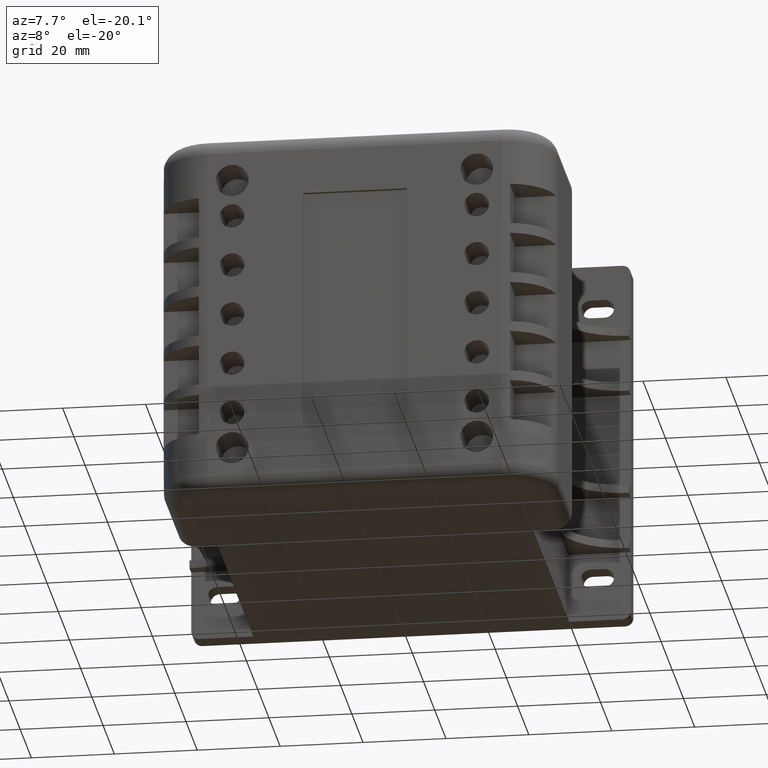
[diagram: clean part render]
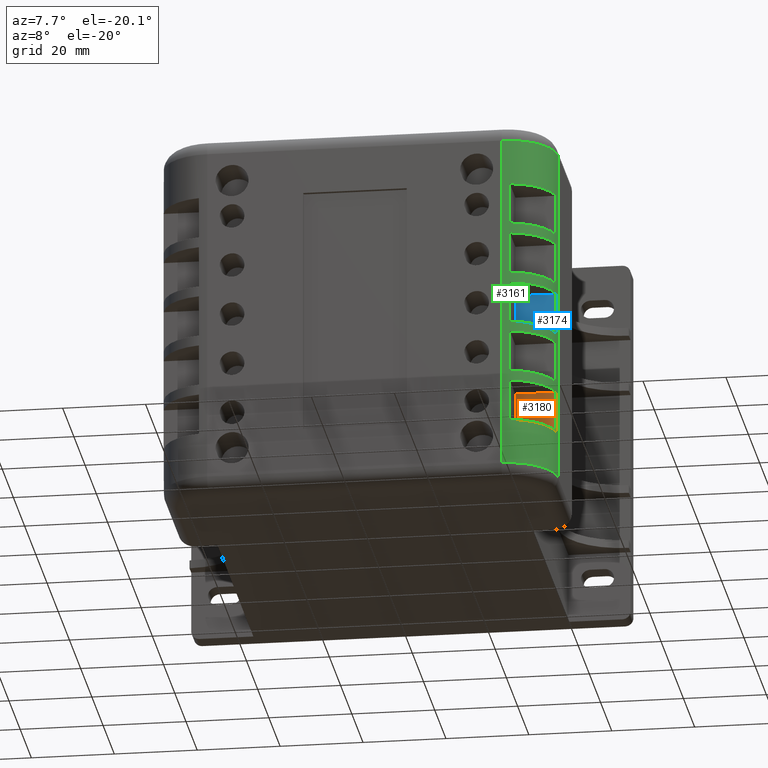
[diagram: same view with three faces highlighted in distinct colors, each labeled with its STEP entity id]
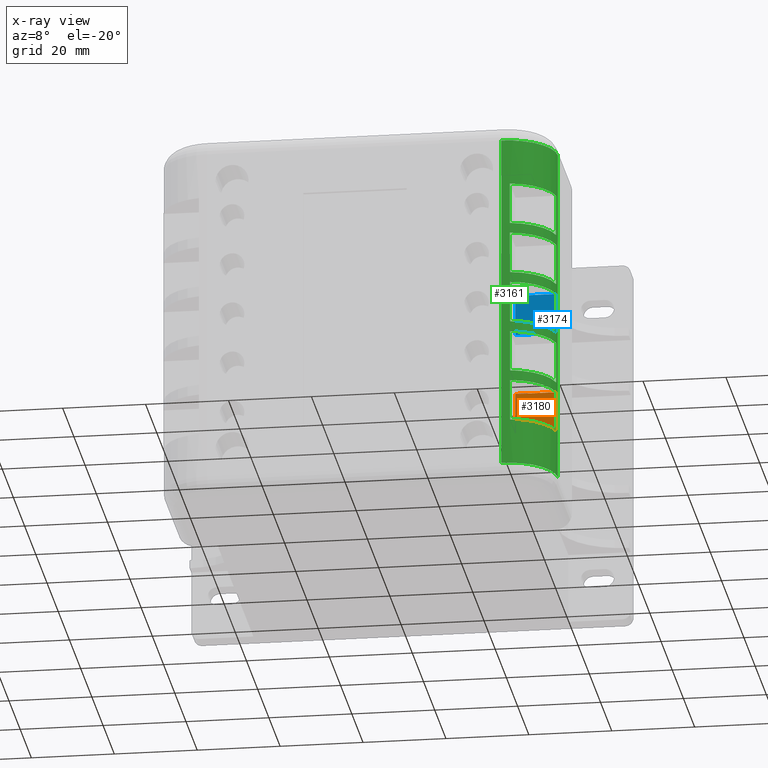
[diagram: x-ray of the same camera — body ghosted, the three highlighted faces saturated]
A machine part, auxiliary view with three faces highlighted in distinct colors.
The next image is the same camera in x-ray (body ghosted, the three faces saturated) — at least one of them is partly hidden behind the body in this view.
Their STEP definitions:

[orange] entity #3180 — the highlighted planar face has unit normal (-0, -1, -0).
#311=FACE_OUTER_BOUND('',#521,.T.);
#521=EDGE_LOOP('',(#2269,#2270,#2271,#2272));
#730=LINE('',#4918,#1034);
#746=LINE('',#4955,#1050);
#748=LINE('',#4958,#1052);
#757=LINE('',#4979,#1061);
#1034=VECTOR('',#4030,10.);
#1050=VECTOR('',#4064,10.);
#1052=VECTOR('',#4068,10.);
#1061=VECTOR('',#4097,10.);
#1346=VERTEX_POINT('',#4911);
#1349=VERTEX_POINT('',#4916);
#1360=VERTEX_POINT('',#4952);
#1361=VERTEX_POINT('',#4954);
#1666=EDGE_CURVE('',#1349,#1346,#730,.T.);
#1684=EDGE_CURVE('',#1361,#1360,#746,.T.);
#1686=EDGE_CURVE('',#1360,#1346,#748,.T.);
#1695=EDGE_CURVE('',#1349,#1361,#757,.T.);
#2269=ORIENTED_EDGE('',*,*,#1666,.F.);
#2270=ORIENTED_EDGE('',*,*,#1695,.T.);
#2271=ORIENTED_EDGE('',*,*,#1684,.T.);
#2272=ORIENTED_EDGE('',*,*,#1686,.T.);
#2814=PLANE('',#3537);
#3180=ADVANCED_FACE('',(#311),#2814,.T.);
#3537=AXIS2_PLACEMENT_3D('',#4980,#4098,#4099);
#4030=DIRECTION('',(-3.94745964311167E-16,0.,-1.));
#4064=DIRECTION('',(-7.89491928622334E-16,0.,-1.));
#4068=DIRECTION('',(-1.,0.,7.89491928622334E-16));
#4097=DIRECTION('',(1.,0.,-7.89491928622334E-16));
#4098=DIRECTION('center_axis',(0.,1.,0.));
#4099=DIRECTION('ref_axis',(-7.89491928622334E-16,0.,-1.));
#4911=CARTESIAN_POINT('',(-94.8321595661992,27.,15.));
#4916=CARTESIAN_POINT('',(-94.8321595661992,27.,25.));
#4918=CARTESIAN_POINT('',(-94.8321595661992,27.,22.5));
#4952=CARTESIAN_POINT('',(-85.,27.,15.));
#4954=CARTESIAN_POINT('',(-85.,27.,25.));
#4955=CARTESIAN_POINT('',(-85.,27.,15.));
#4958=CARTESIAN_POINT('',(-95.,27.,15.));
#4979=CARTESIAN_POINT('',(-85.,27.,25.));
#4980=CARTESIAN_POINT('Origin',(-90.,27.,20.));

[blue] entity #3174 — the highlighted planar face has unit normal (-0, -1, -0).
#305=FACE_OUTER_BOUND('',#515,.T.);
#515=EDGE_LOOP('',(#2248,#2249,#2250,#2251));
#724=LINE('',#4894,#1028);
#734=LINE('',#4931,#1038);
#736=LINE('',#4934,#1040);
#754=LINE('',#4970,#1058);
#1028=VECTOR('',#4012,10.);
#1038=VECTOR('',#4040,10.);
#1040=VECTOR('',#4044,10.);
#1058=VECTOR('',#4082,10.);
#1334=VERTEX_POINT('',#4887);
#1337=VERTEX_POINT('',#4892);
#1354=VERTEX_POINT('',#4928);
#1355=VERTEX_POINT('',#4930);
#1654=EDGE_CURVE('',#1337,#1334,#724,.T.);
#1672=EDGE_CURVE('',#1355,#1354,#734,.T.);
#1674=EDGE_CURVE('',#1354,#1334,#736,.T.);
#1692=EDGE_CURVE('',#1337,#1355,#754,.T.);
#2248=ORIENTED_EDGE('',*,*,#1654,.F.);
#2249=ORIENTED_EDGE('',*,*,#1692,.T.);
#2250=ORIENTED_EDGE('',*,*,#1672,.T.);
#2251=ORIENTED_EDGE('',*,*,#1674,.T.);
#2808=PLANE('',#3531);
#3174=ADVANCED_FACE('',(#305),#2808,.T.);
#3531=AXIS2_PLACEMENT_3D('',#4971,#4083,#4084);
#4012=DIRECTION('',(-3.94745964311167E-16,0.,-1.));
#4040=DIRECTION('',(-7.89491928622334E-16,0.,-1.));
#4044=DIRECTION('',(-1.,0.,7.89491928622334E-16));
#4082=DIRECTION('',(1.,0.,-7.89491928622334E-16));
#4083=DIRECTION('center_axis',(0.,1.,0.));
#4084=DIRECTION('ref_axis',(-7.89491928622334E-16,0.,-1.));
#4887=CARTESIAN_POINT('',(-94.8321595661992,27.,40.));
#4892=CARTESIAN_POINT('',(-94.8321595661992,27.,50.));
#4894=CARTESIAN_POINT('',(-94.8321595661992,27.,22.5));
#4928=CARTESIAN_POINT('',(-85.,27.,40.));
#4930=CARTESIAN_POINT('',(-85.,27.,50.));
#4931=CARTESIAN_POINT('',(-85.,27.,40.));
#4934=CARTESIAN_POINT('',(-95.,27.,40.));
#4970=CARTESIAN_POINT('',(-85.,27.,50.));
#4971=CARTESIAN_POINT('Origin',(-90.,27.,45.));

[green] entity #3161 — the highlighted cylindrical surface (partial cylindrical patch) has radius 12 mm, axis along (-0, -0, 1).
#47=CYLINDRICAL_SURFACE('',#3508,12.);
#108=CIRCLE('',#3490,12.);
#111=CIRCLE('',#3497,12.);
#117=CIRCLE('',#3509,12.);
#118=CIRCLE('',#3510,12.);
#119=CIRCLE('',#3511,12.);
#120=CIRCLE('',#3512,12.);
#121=CIRCLE('',#3513,12.);
#122=CIRCLE('',#3514,12.);
#123=CIRCLE('',#3515,12.);
#124=CIRCLE('',#3516,12.);
#125=CIRCLE('',#3517,12.);
#126=CIRCLE('',#3518,12.);
#196=FACE_BOUND('',#483,.T.);
#197=FACE_BOUND('',#484,.T.);
#198=FACE_BOUND('',#485,.T.);
#199=FACE_BOUND('',#486,.T.);
#200=FACE_BOUND('',#487,.T.);
#292=FACE_OUTER_BOUND('',#482,.T.);
#482=EDGE_LOOP('',(#2164,#2165,#2166,#2167));
#483=EDGE_LOOP('',(#2168,#2169,#2170,#2171));
#484=EDGE_LOOP('',(#2172,#2173,#2174,#2175));
#485=EDGE_LOOP('',(#2176,#2177,#2178,#2179));
#486=EDGE_LOOP('',(#2180,#2181,#2182,#2183));
#487=EDGE_LOOP('',(#2184,#2185,#2186,#2187));
#721=LINE('',#4884,#1025);
#722=LINE('',#4886,#1026);
#723=LINE('',#4891,#1027);
#724=LINE('',#4894,#1028);
#725=LINE('',#4899,#1029);
#726=LINE('',#4902,#1030);
#727=LINE('',#4907,#1031);
#728=LINE('',#4910,#1032);
#729=LINE('',#4915,#1033);
#730=LINE('',#4918,#1034);
#731=LINE('',#4923,#1035);
#732=LINE('',#4926,#1036);
#1025=VECTOR('',#4003,10.);
#1026=VECTOR('',#4006,10.);
#1027=VECTOR('',#4009,10.);
#1028=VECTOR('',#4012,10.);
#1029=VECTOR('',#4015,10.);
#1030=VECTOR('',#4018,10.);
#1031=VECTOR('',#4021,10.);
#1032=VECTOR('',#4024,10.);
#1033=VECTOR('',#4027,10.);
#1034=VECTOR('',#4030,10.);
#1035=VECTOR('',#4033,10.);
#1036=VECTOR('',#4036,10.);
#1324=VERTEX_POINT('',#4844);
#1325=VERTEX_POINT('',#4848);
#1328=VERTEX_POINT('',#4860);
#1330=VERTEX_POINT('',#4865);
#1334=VERTEX_POINT('',#4887);
#1335=VERTEX_POINT('',#4888);
#1336=VERTEX_POINT('',#4890);
#1337=VERTEX_POINT('',#4892);
#1338=VERTEX_POINT('',#4895);
#1339=VERTEX_POINT('',#4896);
#1340=VERTEX_POINT('',#4898);
#1341=VERTEX_POINT('',#4900);
#1342=VERTEX_POINT('',#4903);
#1343=VERTEX_POINT('',#4904);
#1344=VERTEX_POINT('',#4906);
#1345=VERTEX_POINT('',#4908);
#1346=VERTEX_POINT('',#4911);
#1347=VERTEX_POINT('',#4912);
#1348=VERTEX_POINT('',#4914);
#1349=VERTEX_POINT('',#4916);
#1350=VERTEX_POINT('',#4919);
#1351=VERTEX_POINT('',#4920);
#1352=VERTEX_POINT('',#4922);
#1353=VERTEX_POINT('',#4924);
#1632=EDGE_CURVE('',#1325,#1324,#108,.T.);
#1640=EDGE_CURVE('',#1330,#1328,#111,.T.);
#1649=EDGE_CURVE('',#1325,#1328,#721,.T.);
#1650=EDGE_CURVE('',#1330,#1324,#722,.T.);
#1651=EDGE_CURVE('',#1334,#1335,#117,.T.);
#1652=EDGE_CURVE('',#1335,#1336,#723,.T.);
#1653=EDGE_CURVE('',#1336,#1337,#118,.T.);
#1654=EDGE_CURVE('',#1337,#1334,#724,.T.);
#1655=EDGE_CURVE('',#1338,#1339,#119,.T.);
#1656=EDGE_CURVE('',#1339,#1340,#725,.T.);
#1657=EDGE_CURVE('',#1340,#1341,#120,.T.);
#1658=EDGE_CURVE('',#1341,#1338,#726,.T.);
#1659=EDGE_CURVE('',#1342,#1343,#121,.T.);
#1660=EDGE_CURVE('',#1343,#1344,#727,.T.);
#1661=EDGE_CURVE('',#1344,#1345,#122,.T.);
#1662=EDGE_CURVE('',#1345,#1342,#728,.T.);
#1663=EDGE_CURVE('',#1346,#1347,#123,.T.);
#1664=EDGE_CURVE('',#1347,#1348,#729,.T.);
#1665=EDGE_CURVE('',#1348,#1349,#124,.T.);
#1666=EDGE_CURVE('',#1349,#1346,#730,.T.);
#1667=EDGE_CURVE('',#1350,#1351,#125,.T.);
#1668=EDGE_CURVE('',#1351,#1352,#731,.T.);
#1669=EDGE_CURVE('',#1352,#1353,#126,.T.);
#1670=EDGE_CURVE('',#1353,#1350,#732,.T.);
#2164=ORIENTED_EDGE('',*,*,#1632,.F.);
#2165=ORIENTED_EDGE('',*,*,#1649,.T.);
#2166=ORIENTED_EDGE('',*,*,#1640,.F.);
#2167=ORIENTED_EDGE('',*,*,#1650,.T.);
#2168=ORIENTED_EDGE('',*,*,#1651,.T.);
#2169=ORIENTED_EDGE('',*,*,#1652,.T.);
#2170=ORIENTED_EDGE('',*,*,#1653,.T.);
#2171=ORIENTED_EDGE('',*,*,#1654,.T.);
#2172=ORIENTED_EDGE('',*,*,#1655,.T.);
#2173=ORIENTED_EDGE('',*,*,#1656,.T.);
#2174=ORIENTED_EDGE('',*,*,#1657,.T.);
#2175=ORIENTED_EDGE('',*,*,#1658,.T.);
#2176=ORIENTED_EDGE('',*,*,#1659,.T.);
#2177=ORIENTED_EDGE('',*,*,#1660,.T.);
#2178=ORIENTED_EDGE('',*,*,#1661,.T.);
#2179=ORIENTED_EDGE('',*,*,#1662,.T.);
#2180=ORIENTED_EDGE('',*,*,#1663,.T.);
#2181=ORIENTED_EDGE('',*,*,#1664,.T.);
#2182=ORIENTED_EDGE('',*,*,#1665,.T.);
#2183=ORIENTED_EDGE('',*,*,#1666,.T.);
#2184=ORIENTED_EDGE('',*,*,#1667,.T.);
#2185=ORIENTED_EDGE('',*,*,#1668,.T.);
#2186=ORIENTED_EDGE('',*,*,#1669,.T.);
#2187=ORIENTED_EDGE('',*,*,#1670,.T.);
#3161=ADVANCED_FACE('',(#292,#196,#197,#198,#199,#200),#47,.T.);
#3490=AXIS2_PLACEMENT_3D('',#4850,#3959,#3960);
#3497=AXIS2_PLACEMENT_3D('',#4867,#3978,#3979);
#3508=AXIS2_PLACEMENT_3D('',#4885,#4004,#4005);
#3509=AXIS2_PLACEMENT_3D('',#4889,#4007,#4008);
#3510=AXIS2_PLACEMENT_3D('',#4893,#4010,#4011);
#3511=AXIS2_PLACEMENT_3D('',#4897,#4013,#4014);
#3512=AXIS2_PLACEMENT_3D('',#4901,#4016,#4017);
#3513=AXIS2_PLACEMENT_3D('',#4905,#4019,#4020);
#3514=AXIS2_PLACEMENT_3D('',#4909,#4022,#4023);
#3515=AXIS2_PLACEMENT_3D('',#4913,#4025,#4026);
#3516=AXIS2_PLACEMENT_3D('',#4917,#4028,#4029);
#3517=AXIS2_PLACEMENT_3D('',#4921,#4031,#4032);
#3518=AXIS2_PLACEMENT_3D('',#4925,#4034,#4035);
#3959=DIRECTION('center_axis',(0.,0.,-1.));
#3960=DIRECTION('ref_axis',(-0.707106781186549,0.707106781186546,0.));
#3978=DIRECTION('center_axis',(0.,0.,1.));
#3979=DIRECTION('ref_axis',(-0.707106781186547,0.707106781186548,0.));
#4003=DIRECTION('',(3.94745964311167E-16,0.,1.));
#4004=DIRECTION('center_axis',(3.94745964311167E-16,0.,1.));
#4005=DIRECTION('ref_axis',(-0.707106781186547,0.707106781186548,5.23364152894592E-16));
#4006=DIRECTION('',(-3.94745964311167E-16,0.,-1.));
#4007=DIRECTION('center_axis',(-7.89491928622333E-16,0.,-1.));
#4008=DIRECTION('ref_axis',(-0.707106781186547,0.707106781186548,5.23364152894592E-16));
#4009=DIRECTION('',(3.94745964311167E-16,0.,1.));
#4010=DIRECTION('center_axis',(7.89491928622333E-16,0.,1.));
#4011=DIRECTION('ref_axis',(-0.707106781186547,0.707106781186548,5.23364152894592E-16));
#4012=DIRECTION('',(-3.94745964311167E-16,0.,-1.));
#4013=DIRECTION('center_axis',(-7.89491928622333E-16,0.,-1.));
#4014=DIRECTION('ref_axis',(-0.707106781186547,0.707106781186548,5.23364152894592E-16));
#4015=DIRECTION('',(3.94745964311167E-16,0.,1.));
#4016=DIRECTION('center_axis',(7.89491928622333E-16,0.,1.));
#4017=DIRECTION('ref_axis',(-0.707106781186547,0.707106781186548,5.23364152894592E-16));
#4018=DIRECTION('',(-3.94745964311167E-16,0.,-1.));
#4019=DIRECTION('center_axis',(-7.89491928622333E-16,0.,-1.));
#4020=DIRECTION('ref_axis',(-0.707106781186547,0.707106781186548,5.23364152894592E-16));
#4021=DIRECTION('',(3.94745964311167E-16,0.,1.));
#4022=DIRECTION('center_axis',(7.89491928622333E-16,0.,1.));
#4023=DIRECTION('ref_axis',(-0.707106781186547,0.707106781186548,5.23364152894592E-16));
#4024=DIRECTION('',(-3.94745964311167E-16,0.,-1.));
#4025=DIRECTION('center_axis',(-7.89491928622333E-16,0.,-1.));
#4026=DIRECTION('ref_axis',(-0.707106781186547,0.707106781186548,5.23364152894592E-16));
#4027=DIRECTION('',(3.94745964311167E-16,0.,1.));
#4028=DIRECTION('center_axis',(7.89491928622333E-16,0.,1.));
#4029=DIRECTION('ref_axis',(-0.707106781186547,0.707106781186548,5.23364152894592E-16));
#4030=DIRECTION('',(-3.94745964311167E-16,0.,-1.));
#4031=DIRECTION('center_axis',(-7.89491928622333E-16,0.,-1.));
#4032=DIRECTION('ref_axis',(-0.707106781186547,0.707106781186548,5.23364152894592E-16));
#4033=DIRECTION('',(3.94745964311167E-16,0.,1.));
#4034=DIRECTION('center_axis',(7.89491928622333E-16,0.,1.));
#4035=DIRECTION('ref_axis',(-0.707106781186547,0.707106781186548,5.23364152894592E-16));
#4036=DIRECTION('',(-3.94745964311167E-16,0.,-1.));
#4844=CARTESIAN_POINT('',(-83.,37.,4.));
#4848=CARTESIAN_POINT('',(-95.,25.,4.00000000000003));
#4850=CARTESIAN_POINT('Origin',(-83.,25.,4.00000000000003));
#4860=CARTESIAN_POINT('',(-95.,25.,86.));
#4865=CARTESIAN_POINT('',(-83.,37.,86.));
#4867=CARTESIAN_POINT('Origin',(-83.,25.,86.));
#4884=CARTESIAN_POINT('',(-95.,25.,22.5));
#4885=CARTESIAN_POINT('Origin',(-83.,25.,22.5));
#4886=CARTESIAN_POINT('',(-83.,37.,22.5));
#4887=CARTESIAN_POINT('',(-94.8321595661992,27.,40.));
#4888=CARTESIAN_POINT('',(-85.,36.8321595661992,40.));
#4889=CARTESIAN_POINT('Origin',(-83.,25.,40.));
#4890=CARTESIAN_POINT('',(-85.,36.8321595661992,50.));
#4891=CARTESIAN_POINT('',(-85.,36.8321595661992,22.5));
#4892=CARTESIAN_POINT('',(-94.8321595661992,27.,50.));
#4893=CARTESIAN_POINT('Origin',(-83.,25.,50.));
#4894=CARTESIAN_POINT('',(-94.8321595661992,27.,22.5));
#4895=CARTESIAN_POINT('',(-94.8321595661992,27.,27.5));
#4896=CARTESIAN_POINT('',(-85.,36.8321595661992,27.5));
#4897=CARTESIAN_POINT('Origin',(-83.,25.,27.5));
#4898=CARTESIAN_POINT('',(-85.,36.8321595661992,37.5));
#4899=CARTESIAN_POINT('',(-85.,36.8321595661992,22.5));
#4900=CARTESIAN_POINT('',(-94.8321595661992,27.,37.5));
#4901=CARTESIAN_POINT('Origin',(-83.,25.,37.5));
#4902=CARTESIAN_POINT('',(-94.8321595661992,27.,22.5));
#4903=CARTESIAN_POINT('',(-94.8321595661992,27.,52.5));
#4904=CARTESIAN_POINT('',(-85.,36.8321595661992,52.5));
#4905=CARTESIAN_POINT('Origin',(-83.,25.,52.5));
#4906=CARTESIAN_POINT('',(-84.9999999999999,36.8321595661992,62.5));
#4907=CARTESIAN_POINT('',(-85.,36.8321595661992,22.5));
#4908=CARTESIAN_POINT('',(-94.8321595661992,27.,62.5));
#4909=CARTESIAN_POINT('Origin',(-83.,25.,62.5));
#4910=CARTESIAN_POINT('',(-94.8321595661992,27.,22.5));
#4911=CARTESIAN_POINT('',(-94.8321595661992,27.,15.));
#4912=CARTESIAN_POINT('',(-85.,36.8321595661992,15.));
#4913=CARTESIAN_POINT('Origin',(-83.,25.,15.));
#4914=CARTESIAN_POINT('',(-85.,36.8321595661992,25.));
#4915=CARTESIAN_POINT('',(-85.,36.8321595661992,22.5));
#4916=CARTESIAN_POINT('',(-94.8321595661992,27.,25.));
#4917=CARTESIAN_POINT('Origin',(-83.,25.,25.));
#4918=CARTESIAN_POINT('',(-94.8321595661992,27.,22.5));
#4919=CARTESIAN_POINT('',(-94.8321595661992,27.,65.));
#4920=CARTESIAN_POINT('',(-84.9999999999999,36.8321595661992,65.));
#4921=CARTESIAN_POINT('Origin',(-83.,25.,65.));
#4922=CARTESIAN_POINT('',(-84.9999999999999,36.8321595661992,75.));
#4923=CARTESIAN_POINT('',(-85.,36.8321595661992,22.5));
#4924=CARTESIAN_POINT('',(-94.8321595661992,27.,75.));
#4925=CARTESIAN_POINT('Origin',(-83.,25.,75.));
#4926=CARTESIAN_POINT('',(-94.8321595661992,27.,22.5));